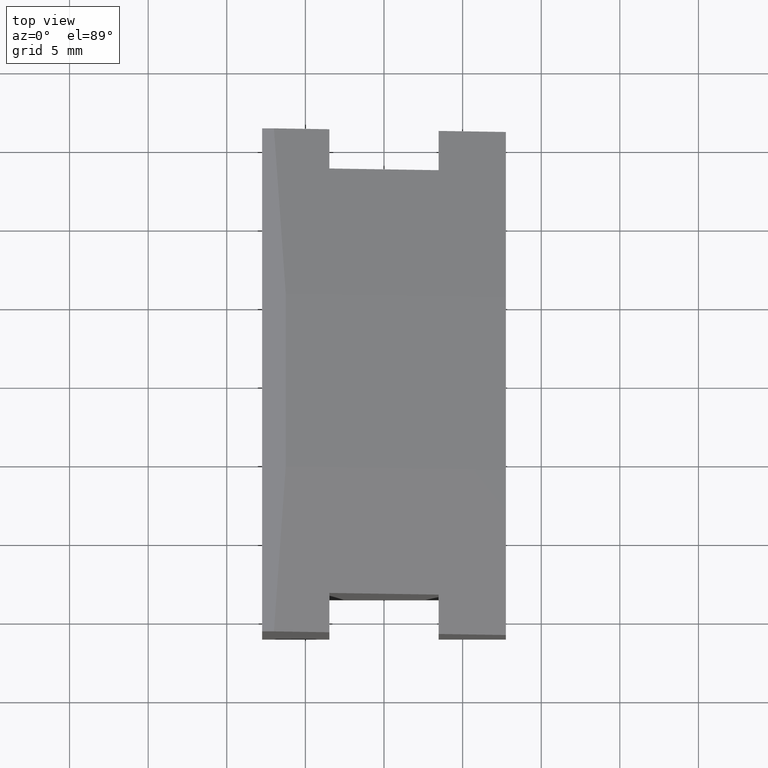
[diagram: clean part render]
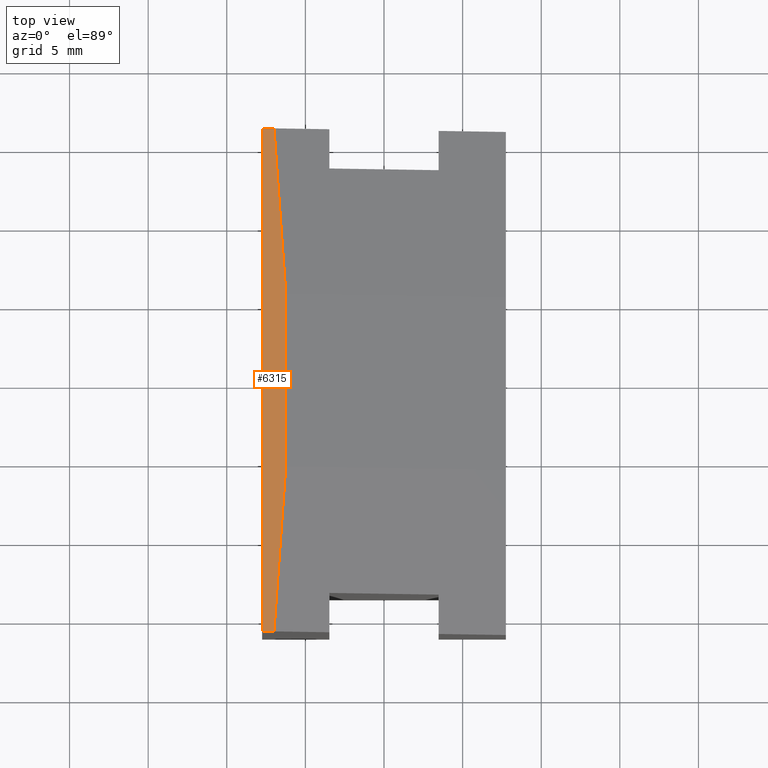
[diagram: same view with one face highlighted and labeled with its STEP entity id]
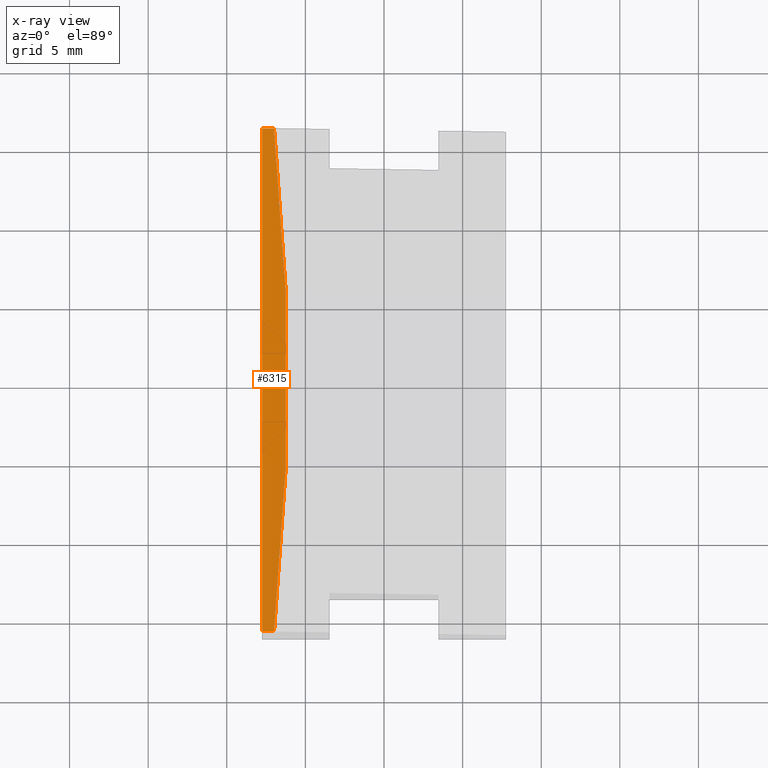
[diagram: x-ray of the same camera — body ghosted, the highlighted face saturated]
A machine part, top view. The second image highlights one B-rep face of the part: STEP entity #6315.
The next image is the same camera in x-ray: the body ghosted, the highlighted face saturated — about 0% of this face is hidden behind the body in this view.
In plain terms, the highlighted planar face has unit normal (0, 0, -1).
Its self-contained STEP definition (entity closure, byte-faithful):
#26 = CARTESIAN_POINT ( 'NONE',  ( -6.250000000000000000, -16.00000000000000355, 15.00000000000000000 ) ) ;
#274 = VERTEX_POINT ( 'NONE', #2539 ) ;
#314 = EDGE_CURVE ( 'NONE', #8095, #5513, #9163, .T. ) ;
#508 = CARTESIAN_POINT ( 'NONE',  ( -7.750000000000000000, -16.00000000000000000, 15.00000000000000000 ) ) ;
#587 = LINE ( 'NONE', #4828, #10456 ) ;
#671 = DIRECTION ( 'NONE',  ( 1.000000000000000000, -8.115665384686809833E-16, -0.000000000000000000 ) ) ;
#1093 = EDGE_CURVE ( 'NONE', #3323, #8586, #587, .T. ) ;
#1196 = LINE ( 'NONE', #26, #9771 ) ;
#1250 = DIRECTION ( 'NONE',  ( -0.07131632577931368289, -0.9974537491419533941, 0.000000000000000000 ) ) ;
#1552 = VECTOR ( 'NONE', #2661, 1000.000000000000000 ) ;
#1894 = CARTESIAN_POINT ( 'NONE',  ( 0.000000000000000000, 0.000000000000000000, 15.00000000000000000 ) ) ;
#2360 = VECTOR ( 'NONE', #6832, 1000.000000000000000 ) ;
#2487 = EDGE_CURVE ( 'NONE', #5513, #3323, #6690, .T. ) ;
#2539 = CARTESIAN_POINT ( 'NONE',  ( -6.250000000000000000, 5.499999999999987566, 15.00000000000000000 ) ) ;
#2544 = VERTEX_POINT ( 'NONE', #11909 ) ;
#2583 = LINE ( 'NONE', #7718, #4693 ) ;
#2661 = DIRECTION ( 'NONE',  ( -1.000000000000000000, -0.000000000000000000, -0.000000000000000000 ) ) ;
#3300 = VECTOR ( 'NONE', #1250, 1000.000000000000000 ) ;
#3323 = VERTEX_POINT ( 'NONE', #9073 ) ;
#3649 = DIRECTION ( 'NONE',  ( -0.07131632577931024120, 0.9974537491419536162, 0.000000000000000000 ) ) ;
#4318 = ORIENTED_EDGE ( 'NONE', *, *, #1093, .T. ) ;
#4534 = FACE_OUTER_BOUND ( 'NONE', #7361, .T. ) ;
#4693 = VECTOR ( 'NONE', #3649, 1000.000000000000114 ) ;
#4828 = CARTESIAN_POINT ( 'NONE',  ( -3.474999999999996536, -16.00000000000000355, 15.00000000000000000 ) ) ;
#5147 = ORIENTED_EDGE ( 'NONE', *, *, #12211, .F. ) ;
#5513 = VERTEX_POINT ( 'NONE', #8647 ) ;
#6315 = ADVANCED_FACE ( 'NONE', ( #4534 ), #7208, .F. ) ;
#6645 = EDGE_CURVE ( 'NONE', #274, #8095, #2583, .T. ) ;
#6690 = LINE ( 'NONE', #508, #2360 ) ;
#6832 = DIRECTION ( 'NONE',  ( -0.000000000000000000, -1.000000000000000000, -0.000000000000000000 ) ) ;
#7153 = DIRECTION ( 'NONE',  ( -1.000000000000000000, 0.000000000000000000, -0.000000000000000000 ) ) ;
#7208 = PLANE ( 'NONE',  #11858 ) ;
#7230 = ORIENTED_EDGE ( 'NONE', *, *, #11482, .T. ) ;
#7361 = EDGE_LOOP ( 'NONE', ( #7230, #10879, #13116, #13074, #4318, #5147 ) ) ;
#7718 = CARTESIAN_POINT ( 'NONE',  ( -5.826971334603560315, -0.4166190024978782547, 15.00000000000000000 ) ) ;
#8095 = VERTEX_POINT ( 'NONE', #12652 ) ;
#8586 = VERTEX_POINT ( 'NONE', #8757 ) ;
#8647 = CARTESIAN_POINT ( 'NONE',  ( -7.750000000000000000, 16.00000000000000000, 15.00000000000000000 ) ) ;
#8757 = CARTESIAN_POINT ( 'NONE',  ( -7.000732975164963179, -16.00000000000000711, 15.00000000000000000 ) ) ;
#9073 = CARTESIAN_POINT ( 'NONE',  ( -7.750000000000000000, -16.00000000000000000, 15.00000000000000000 ) ) ;
#9163 = LINE ( 'NONE', #9755, #1552 ) ;
#9204 = DIRECTION ( 'NONE',  ( -0.000000000000000000, 1.000000000000000000, -0.000000000000000000 ) ) ;
#9755 = CARTESIAN_POINT ( 'NONE',  ( -7.750000000000000000, 16.00000000000000000, 15.00000000000000000 ) ) ;
#9771 = VECTOR ( 'NONE', #9204, 1000.000000000000000 ) ;
#10172 = DIRECTION ( 'NONE',  ( 0.000000000000000000, 0.000000000000000000, -1.000000000000000000 ) ) ;
#10456 = VECTOR ( 'NONE', #671, 1000.000000000000000 ) ;
#10639 = CARTESIAN_POINT ( 'NONE',  ( -5.826971334603529229, 0.4166190024978963513, 15.00000000000000000 ) ) ;
#10879 = ORIENTED_EDGE ( 'NONE', *, *, #6645, .T. ) ;
#11482 = EDGE_CURVE ( 'NONE', #2544, #274, #1196, .T. ) ;
#11513 = LINE ( 'NONE', #10639, #3300 ) ;
#11858 = AXIS2_PLACEMENT_3D ( 'NONE', #1894, #10172, #7153 ) ;
#11909 = CARTESIAN_POINT ( 'NONE',  ( -6.249999999999995559, -5.500000000000003553, 15.00000000000000355 ) ) ;
#12211 = EDGE_CURVE ( 'NONE', #2544, #8586, #11513, .T. ) ;
#12652 = CARTESIAN_POINT ( 'NONE',  ( -7.000732975164933869, 15.99999999999999289, 15.00000000000000000 ) ) ;
#13074 = ORIENTED_EDGE ( 'NONE', *, *, #2487, .T. ) ;
#13116 = ORIENTED_EDGE ( 'NONE', *, *, #314, .T. ) ;